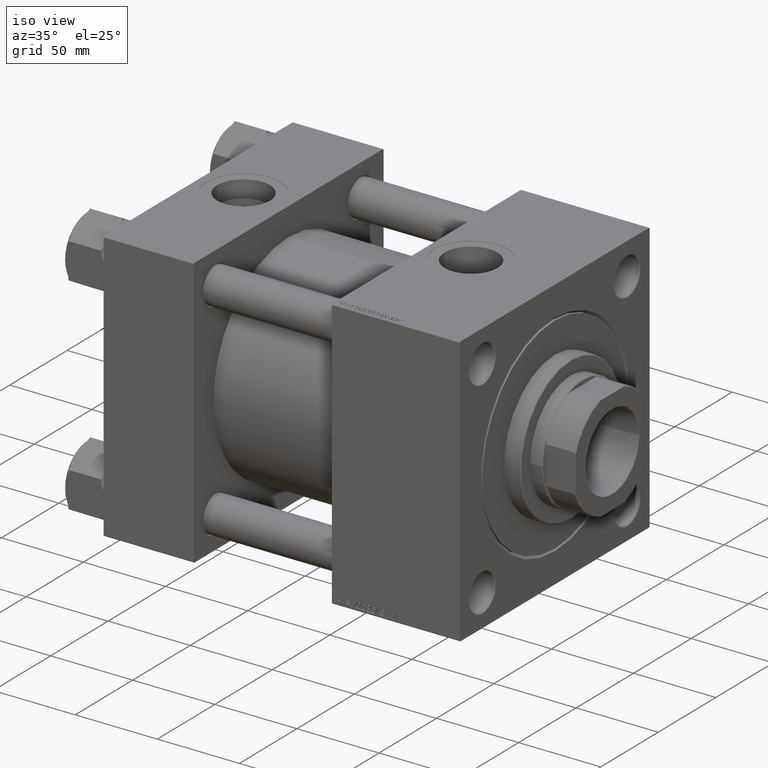
[diagram: clean part render]
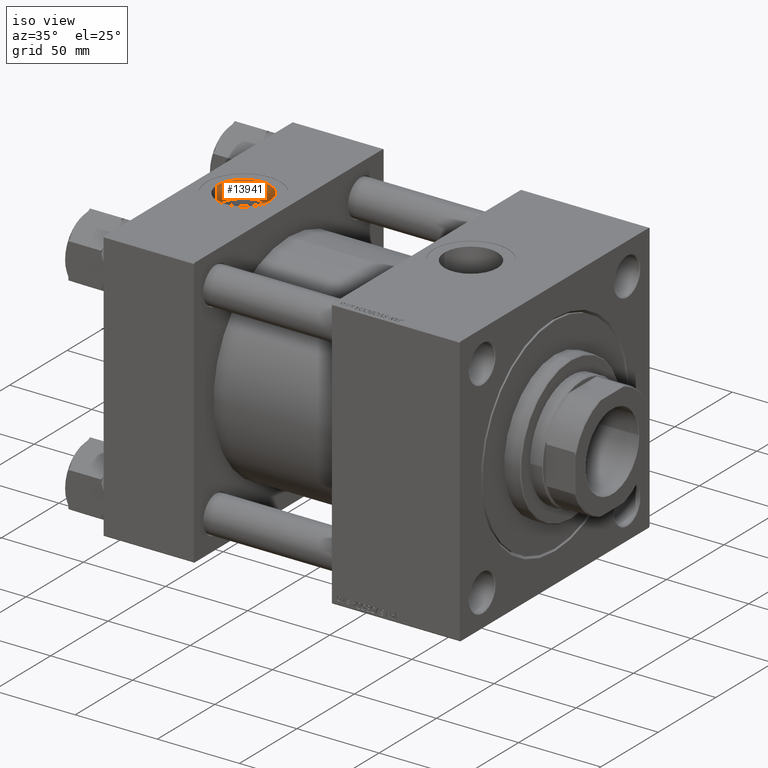
[diagram: same view with one face highlighted and labeled with its STEP entity id]
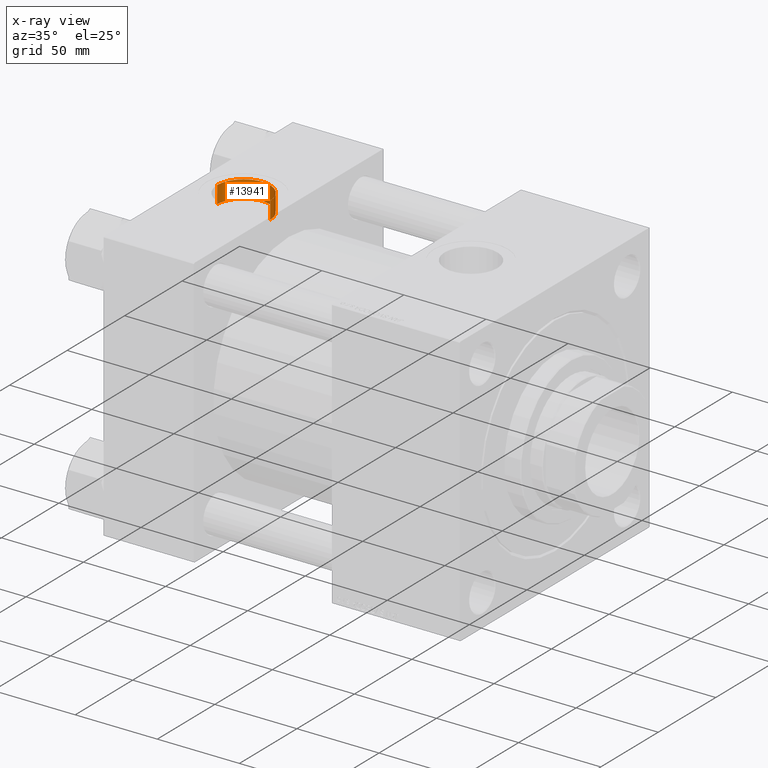
[diagram: x-ray of the same camera — body ghosted, the highlighted face saturated]
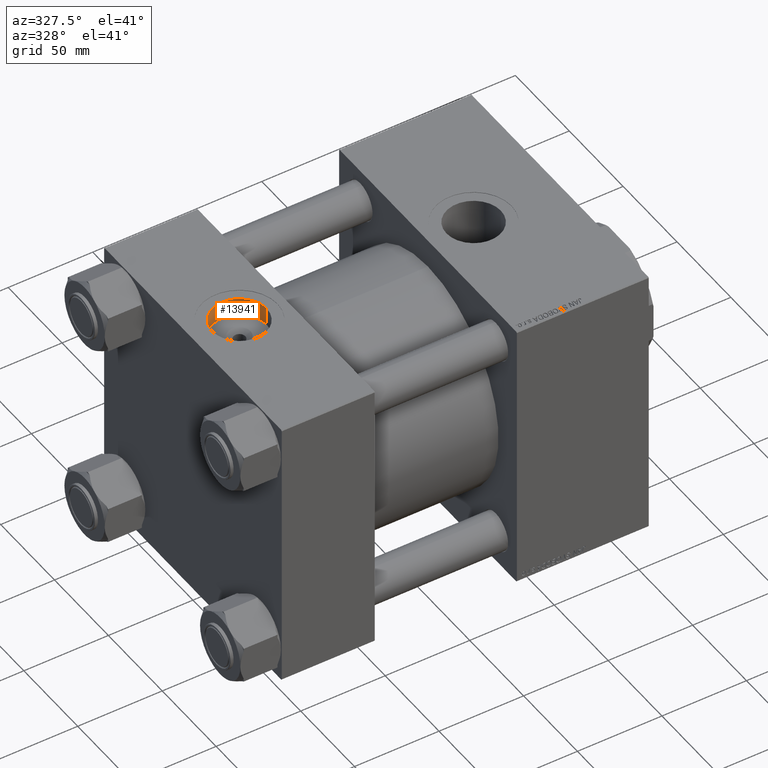
[diagram: same view with one face highlighted and labeled with its STEP entity id]
A machine part, iso view. The second image highlights one B-rep face of the part: STEP entity #13941.
The next image is the same camera in x-ray: the body ghosted, the highlighted face saturated — about 0% of this face is hidden behind the body in this view.
A second angle (auxiliary view) of the same face is appended — the face is thin or edge-on in the first view.
In plain terms, the highlighted cylindrical surface (edge-blend (fillet) strip) has radius 16.12 mm, axis along (0, 0, 1).
Its self-contained STEP definition (entity closure, byte-faithful):
#5919 = CIRCLE ( 'NONE', #10917, 16.12000000000000455 ) ;
#5927 = FACE_OUTER_BOUND ( 'NONE', #34480, .T. ) ;
#6242 = VECTOR ( 'NONE', #37546, 1000.000000000000000 ) ;
#9545 = DIRECTION ( 'NONE',  ( -0.000000000000000000, -0.000000000000000000, 1.000000000000000000 ) ) ;
#10917 = AXIS2_PLACEMENT_3D ( 'NONE', #46756, #14453, #30107 ) ;
#12893 = CARTESIAN_POINT ( 'NONE',  ( 43.62000000000000455, -8.673617379884037050E-15, 71.70000000000001705 ) ) ;
#13040 = EDGE_CURVE ( 'NONE', #21120, #14633, #5919, .T. ) ;
#13853 = VERTEX_POINT ( 'NONE', #12893 ) ;
#13941 = ADVANCED_FACE ( 'NONE', ( #5927 ), #29045, .F. ) ;
#14205 = CARTESIAN_POINT ( 'NONE',  ( 11.37999999999999012, -6.699486739658503022E-15, 71.70000000000001705 ) ) ;
#14402 = CARTESIAN_POINT ( 'NONE',  ( 27.50000000000000000, -8.673617379884037050E-15, 71.70000000000001705 ) ) ;
#14453 = DIRECTION ( 'NONE',  ( 0.000000000000000000, 0.000000000000000000, 1.000000000000000000 ) ) ;
#14633 = VERTEX_POINT ( 'NONE', #18114 ) ;
#14946 = EDGE_CURVE ( 'NONE', #13853, #16662, #50274, .T. ) ;
#16289 = CARTESIAN_POINT ( 'NONE',  ( 43.62000000000000455, -8.673617379884037050E-15, 82.30000000000001137 ) ) ;
#16662 = VERTEX_POINT ( 'NONE', #33964 ) ;
#17650 = ORIENTED_EDGE ( 'NONE', *, *, #24211, .F. ) ;
#18114 = CARTESIAN_POINT ( 'NONE',  ( 11.37999999999999012, -6.699486739658503022E-15, 82.30000000000001137 ) ) ;
#18501 = DIRECTION ( 'NONE',  ( 1.000000000000000000, 0.000000000000000000, 0.000000000000000000 ) ) ;
#19150 = CARTESIAN_POINT ( 'NONE',  ( 43.62000000000000455, -8.673617379884037050E-15, 71.70000000000001705 ) ) ;
#21120 = VERTEX_POINT ( 'NONE', #16289 ) ;
#21165 = VECTOR ( 'NONE', #35041, 1000.000000000000000 ) ;
#21650 = LINE ( 'NONE', #14205, #6242 ) ;
#22343 = DIRECTION ( 'NONE',  ( 0.000000000000000000, 0.000000000000000000, 1.000000000000000000 ) ) ;
#22551 = ORIENTED_EDGE ( 'NONE', *, *, #13040, .T. ) ;
#24211 = EDGE_CURVE ( 'NONE', #16662, #14633, #21650, .T. ) ;
#25205 = DIRECTION ( 'NONE',  ( 1.000000000000000000, 0.000000000000000000, 0.000000000000000000 ) ) ;
#27865 = LINE ( 'NONE', #19150, #21165 ) ;
#29045 = CYLINDRICAL_SURFACE ( 'NONE', #40423, 16.12000000000000455 ) ;
#30107 = DIRECTION ( 'NONE',  ( 1.000000000000000000, 0.000000000000000000, 0.000000000000000000 ) ) ;
#33964 = CARTESIAN_POINT ( 'NONE',  ( 11.37999999999999012, -6.699486739658503022E-15, 71.70000000000001705 ) ) ;
#34480 = EDGE_LOOP ( 'NONE', ( #17650, #38065, #39614, #22551 ) ) ;
#34724 = AXIS2_PLACEMENT_3D ( 'NONE', #50278, #22343, #18501 ) ;
#35041 = DIRECTION ( 'NONE',  ( -0.000000000000000000, -0.000000000000000000, 1.000000000000000000 ) ) ;
#37546 = DIRECTION ( 'NONE',  ( -0.000000000000000000, -0.000000000000000000, 1.000000000000000000 ) ) ;
#38065 = ORIENTED_EDGE ( 'NONE', *, *, #14946, .F. ) ;
#39614 = ORIENTED_EDGE ( 'NONE', *, *, #41650, .T. ) ;
#40423 = AXIS2_PLACEMENT_3D ( 'NONE', #14402, #9545, #25205 ) ;
#41650 = EDGE_CURVE ( 'NONE', #13853, #21120, #27865, .T. ) ;
#46756 = CARTESIAN_POINT ( 'NONE',  ( 27.50000000000000000, -8.673617379884037050E-15, 82.30000000000001137 ) ) ;
#50274 = CIRCLE ( 'NONE', #34724, 16.12000000000000455 ) ;
#50278 = CARTESIAN_POINT ( 'NONE',  ( 27.50000000000000000, -8.673617379884037050E-15, 71.70000000000001705 ) ) ;